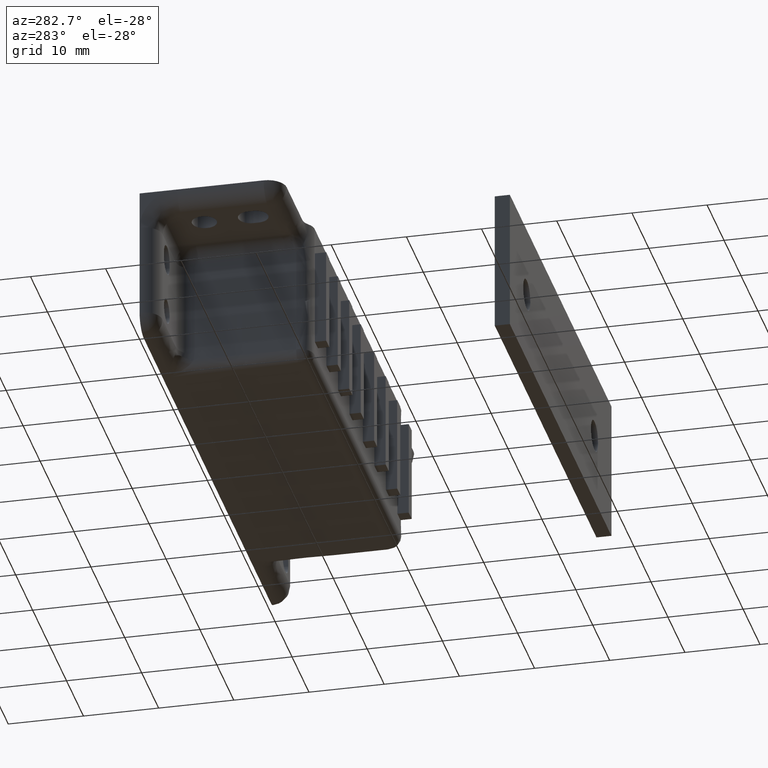
[diagram: clean part render]
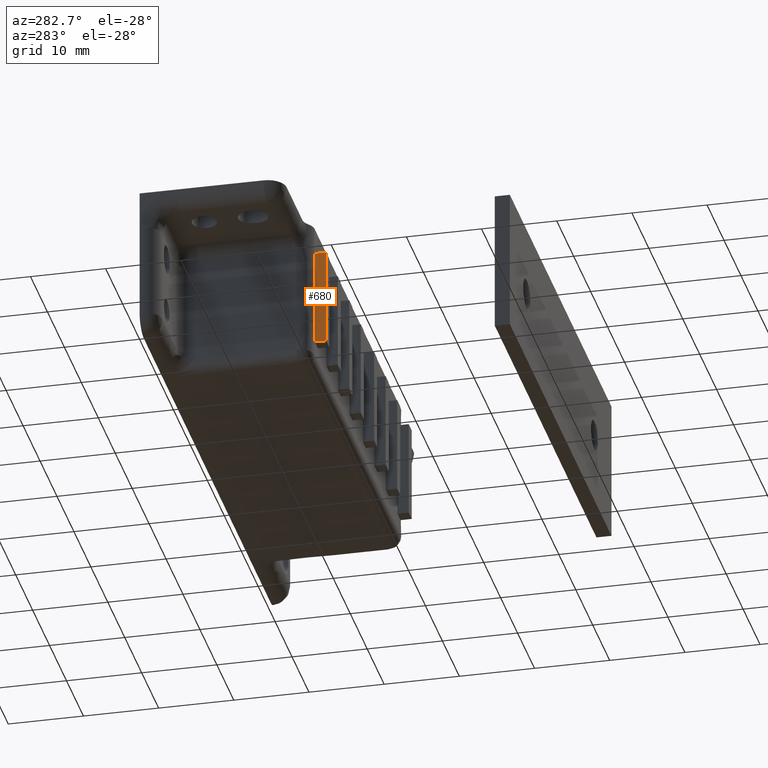
[diagram: same view with one face highlighted and labeled with its STEP entity id]
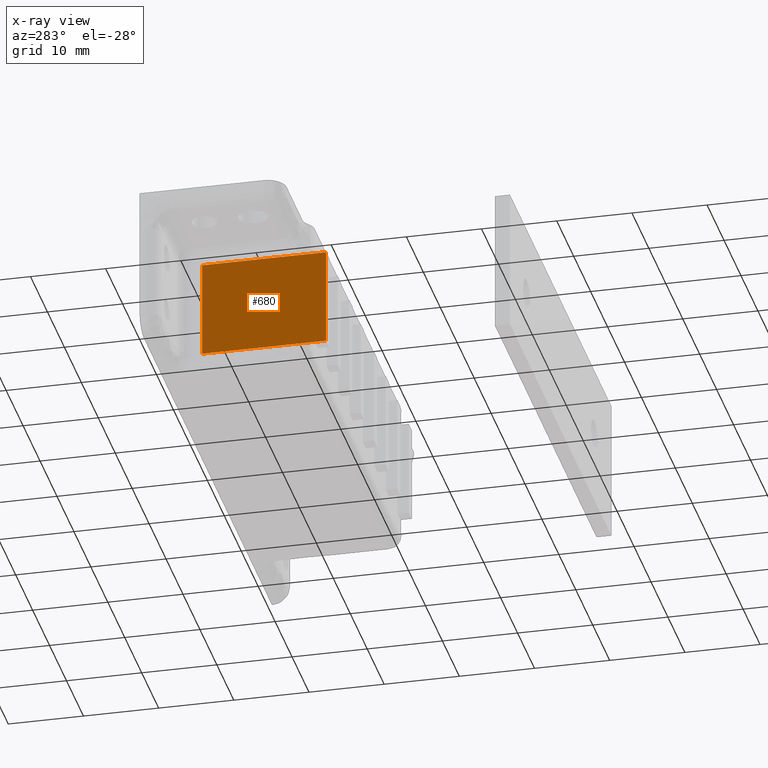
[diagram: x-ray of the same camera — body ghosted, the highlighted face saturated]
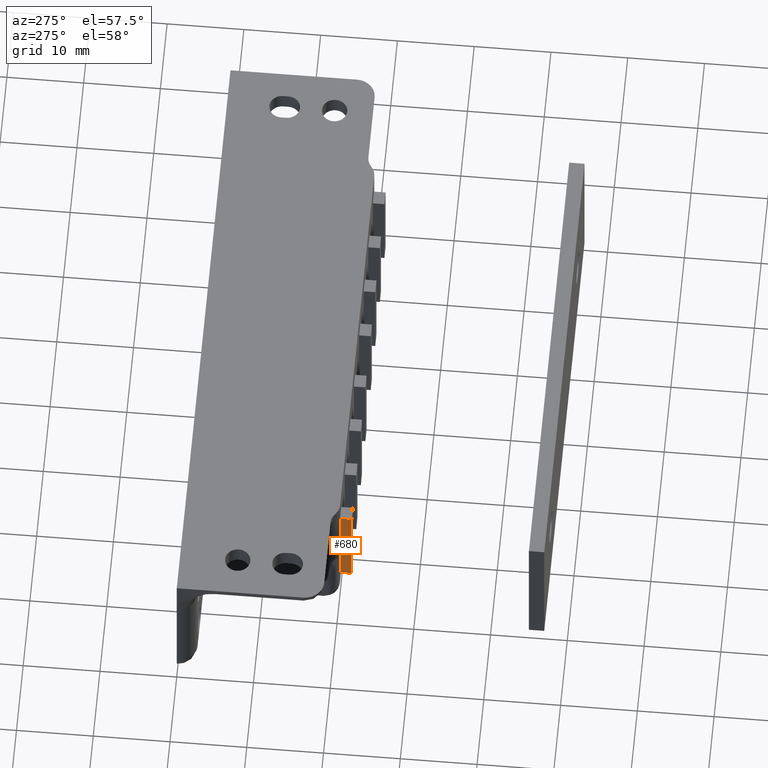
[diagram: same view with one face highlighted and labeled with its STEP entity id]
A machine part, auxiliary view. The second image highlights one B-rep face of the part: STEP entity #680.
The next image is the same camera in x-ray: the body ghosted, the highlighted face saturated — about 0% of this face is hidden behind the body in this view.
A second angle (auxiliary view) of the same face is appended — the face is thin or edge-on in the first view.
In plain terms, the highlighted face is a freeform B-spline surface patch.
Its self-contained STEP definition (entity closure, byte-faithful):
#564=CARTESIAN_POINT('',(-25.249998855591709,-5.0,6.500000000005910));
#565=VERTEX_POINT('',#564);
#578=CARTESIAN_POINT('',(-25.249998855590089,-5.0,-6.500000000070370));
#579=VERTEX_POINT('',#578);
#585=CARTESIAN_POINT('',(-25.249998855591709,-5.0,6.500000000005910));
#586=CARTESIAN_POINT('',(-25.249998855590089,-5.0,-6.500000000070370));
#587=QUASI_UNIFORM_CURVE('',1,(#585,#586),.UNSPECIFIED.,.F.,.U.);
#588=EDGE_CURVE('',#565,#579,#587,.T.);
#600=CARTESIAN_POINT('',(-25.249998855591709,-21.500000000000000,6.500000000005910));
#601=VERTEX_POINT('',#600);
#607=CARTESIAN_POINT('',(-25.249998855590089,-21.500000000000000,-6.500000000070370));
#608=VERTEX_POINT('',#607);
#609=CARTESIAN_POINT('',(-25.249998855591709,-21.500000000000000,6.500000000005910));
#610=CARTESIAN_POINT('',(-25.249998855590089,-21.500000000000000,-6.500000000070370));
#611=QUASI_UNIFORM_CURVE('',1,(#609,#610),.UNSPECIFIED.,.F.,.U.);
#612=EDGE_CURVE('',#601,#608,#611,.T.);
#657=CARTESIAN_POINT('',(-25.249998855590089,-21.500000000000000,-6.500000000070370));
#658=CARTESIAN_POINT('',(-25.249998855590089,-5.0,-6.500000000070370));
#659=QUASI_UNIFORM_CURVE('',1,(#657,#658),.UNSPECIFIED.,.F.,.U.);
#660=EDGE_CURVE('',#608,#579,#659,.T.);
#665=CARTESIAN_POINT('',(-25.249998855591791,-22.324174968019801,7.149349974813198));
#666=CARTESIAN_POINT('',(-25.249998855590011,-22.324174968019801,-7.149350323564830));
#667=CARTESIAN_POINT('',(-25.249998855591791,-4.175824589415716,7.149349974813198));
#668=CARTESIAN_POINT('',(-25.249998855590011,-4.175824589415716,-7.149350323564830));
#669=B_SPLINE_SURFACE_WITH_KNOTS('',1,1,((#665,#667),(#666,#668)),.UNSPECIFIED.,.F.,.F.,.U.,(2,2),(2,2),(0.0,14.298700298378030),(0.0,18.148350378604079),.UNSPECIFIED.);
#670=ORIENTED_EDGE('',*,*,#588,.T.);
#671=ORIENTED_EDGE('',*,*,#660,.F.);
#672=ORIENTED_EDGE('',*,*,#612,.F.);
#673=CARTESIAN_POINT('',(-25.249998855591709,-21.500000000000000,6.500000000005910));
#674=CARTESIAN_POINT('',(-25.249998855591709,-5.0,6.500000000005910));
#675=QUASI_UNIFORM_CURVE('',1,(#673,#674),.UNSPECIFIED.,.F.,.U.);
#676=EDGE_CURVE('',#601,#565,#675,.T.);
#677=ORIENTED_EDGE('',*,*,#676,.T.);
#678=EDGE_LOOP('',(#670,#671,#672,#677));
#679=FACE_OUTER_BOUND('',#678,.T.);
#680=ADVANCED_FACE('',(#679),#669,.F.);